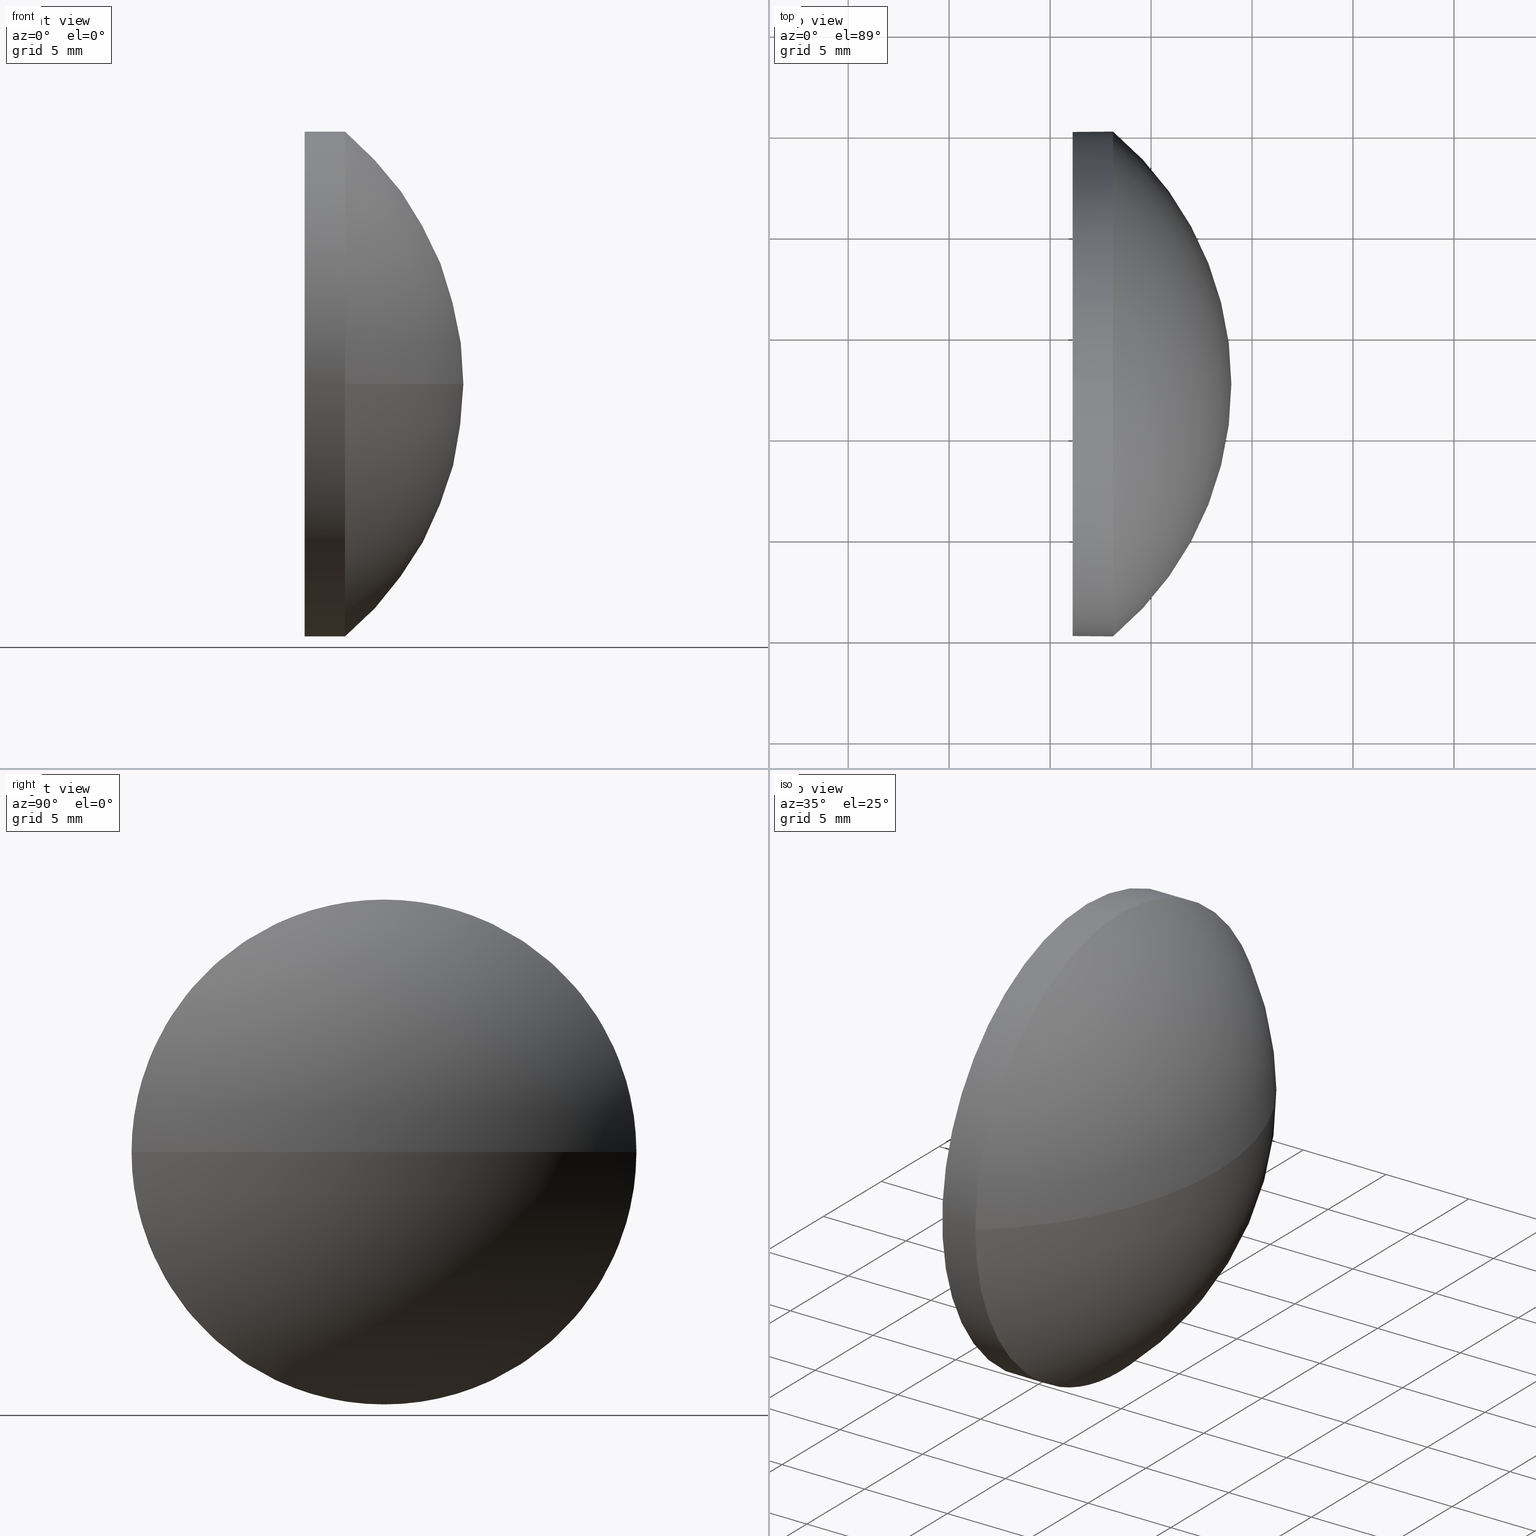
[diagram: canonical four-view strip — front | top / right | iso, engineering-drawing reading convention]
A machine part, canonical four-view strip (front | top / right | iso — engineering-drawing reading convention). The complete STEP part file that produces these views, byte-faithful:
ISO-10303-21;
HEADER;
FILE_DESCRIPTION (( 'STEP AP214' ),
    '1' );
FILE_NAME ('100038.STEP',
    '2019-04-25T08:39:30',
    ( '' ),
    ( '' ),
    'SwSTEP 2.0',
    'SolidWorks 2016',
    '' );
FILE_SCHEMA (( 'AUTOMOTIVE_DESIGN' ));
ENDSEC;

DATA;
#1 = AXIS2_PLACEMENT_3D ( 'NONE', #143, #88, #104 ) ;
#2 = CIRCLE ( 'NONE', #55, 16.26191126279863400 ) ;
#3 = DIRECTION ( 'NONE',  ( -1.000000000000000000, -0.0000000000000000000, -0.0000000000000000000 ) ) ;
#4 = CARTESIAN_POINT ( 'NONE',  ( 543.1151502343923300, 132.5985296569771200, -12.49999999999998400 ) ) ;
#5 = CIRCLE ( 'NONE', #97, 12.49999999999998400 ) ;
#6 = ORIENTED_EDGE ( 'NONE', *, *, #133, .F. ) ;
#7 = DIRECTION ( 'NONE',  ( -1.000000000000000000, -0.0000000000000000000, -0.0000000000000000000 ) ) ;
#8 = CARTESIAN_POINT ( 'NONE',  ( 543.1151502343923300, 132.5985296569771200, 12.49999999999998400 ) ) ;
#9 = ORIENTED_EDGE ( 'NONE', *, *, #86, .F. ) ;
#10 = EDGE_CURVE ( 'NONE', #53, #12, #121, .T. ) ;
#11 = SHAPE_DEFINITION_REPRESENTATION ( #148, #39 ) ;
#12 = VERTEX_POINT ( 'NONE', #152 ) ;
#13 = DIRECTION ( 'NONE',  ( 0.0000000000000000000, 0.0000000000000000000, 1.000000000000000000 ) ) ;
#14 = ORIENTED_EDGE ( 'NONE', *, *, #47, .F. ) ;
#15 = ORIENTED_EDGE ( 'NONE', *, *, #47, .T. ) ;
#16 = AXIS2_PLACEMENT_3D ( 'NONE', #23, #170, #40 ) ;
#17 = VERTEX_POINT ( 'NONE', #177 ) ;
#18 = FACE_OUTER_BOUND ( 'NONE', #58, .T. ) ;
#19 = CARTESIAN_POINT ( 'NONE',  ( 532.7132389715936800, 132.5985296569770900, 0.0000000000000000000 ) ) ;
#20 = FACE_OUTER_BOUND ( 'NONE', #117, .T. ) ;
#21 = CLOSED_SHELL ( 'NONE', ( #100, #102, #114, #80, #65 ) ) ;
#22 = DIRECTION ( 'NONE',  ( -1.000000000000000000, -0.0000000000000000000, -0.0000000000000000000 ) ) ;
#23 = CARTESIAN_POINT ( 'NONE',  ( 539.6031189925024600, 132.5985296569771200, 0.0000000000000000000 ) ) ;
#24 = AXIS2_PLACEMENT_3D ( 'NONE', #56, #106, #73 ) ;
#25 = FILL_AREA_STYLE_COLOUR ( '', #83 ) ;
#26 =( NAMED_UNIT ( * ) SI_UNIT ( $, .STERADIAN. ) SOLID_ANGLE_UNIT ( ) );
#27 = DIRECTION ( 'NONE',  ( 1.000000000000000000, 0.0000000000000000000, 0.0000000000000000000 ) ) ;
#28 = PRESENTATION_STYLE_ASSIGNMENT (( #89 ) ) ;
#29 = AXIS2_PLACEMENT_3D ( 'NONE', #19, #91, #54 ) ;
#30 = ORIENTED_EDGE ( 'NONE', *, *, #86, .T. ) ;
#31 = PLANE ( 'NONE',  #115 ) ;
#32 = EDGE_CURVE ( 'NONE', #53, #17, #98, .T. ) ;
#33 = CYLINDRICAL_SURFACE ( 'NONE', #16, 12.49999999999998400 ) ;
#34 = UNCERTAINTY_MEASURE_WITH_UNIT (LENGTH_MEASURE( 1.000000000000000100E-005 ), #95, 'distance_accuracy_value', 'NONE');
#35 = SURFACE_STYLE_FILL_AREA ( #181 ) ;
#36 = AXIS2_PLACEMENT_3D ( 'NONE', #163, #113, #130 ) ;
#37 = FACE_OUTER_BOUND ( 'NONE', #64, .T. ) ;
#38 = CARTESIAN_POINT ( 'NONE',  ( 541.1151502343923300, 132.5985296569771200, 12.49999999999998400 ) ) ;
#39 = ADVANCED_BREP_SHAPE_REPRESENTATION ( '100038', ( #96, #164 ), #150 ) ;
#40 = DIRECTION ( 'NONE',  ( 0.0000000000000000000, 0.0000000000000000000, 1.000000000000000000 ) ) ;
#41 = ORIENTED_EDGE ( 'NONE', *, *, #63, .F. ) ;
#42 = DIRECTION ( 'NONE',  ( 0.0000000000000000000, 1.224646799147353200E-016, -1.000000000000000000 ) ) ;
#43 = PRESENTATION_STYLE_ASSIGNMENT (( #171 ) ) ;
#44 = VERTEX_POINT ( 'NONE', #46 ) ;
#45 = DIRECTION ( 'NONE',  ( 0.0000000000000000000, 0.0000000000000000000, 1.000000000000000000 ) ) ;
#46 = CARTESIAN_POINT ( 'NONE',  ( 548.9751502343923400, 132.5985296569770900, 0.0000000000000000000 ) ) ;
#47 = EDGE_CURVE ( 'NONE', #153, #12, #85, .T. ) ;
#48 = CIRCLE ( 'NONE', #108, 16.26191126279863400 ) ;
#49 = ORIENTED_EDGE ( 'NONE', *, *, #176, .F. ) ;
#50 = DIRECTION ( 'NONE',  ( 1.000000000000000000, 0.0000000000000000000, 0.0000000000000000000 ) ) ;
#51 = DIRECTION ( 'NONE',  ( 0.0000000000000000000, 0.0000000000000000000, 1.000000000000000000 ) ) ;
#52 =( NAMED_UNIT ( * ) SI_UNIT ( $, .STERADIAN. ) SOLID_ANGLE_UNIT ( ) );
#53 = VERTEX_POINT ( 'NONE', #4 ) ;
#54 = DIRECTION ( 'NONE',  ( 0.0000000000000000000, 1.000000000000000000, 0.0000000000000000000 ) ) ;
#55 = AXIS2_PLACEMENT_3D ( 'NONE', #119, #120, #165 ) ;
#56 = CARTESIAN_POINT ( 'NONE',  ( 541.1151502343923300, 132.5985296569771200, 0.0000000000000000000 ) ) ;
#57 = CIRCLE ( 'NONE', #112, 12.49999999999998400 ) ;
#58 = EDGE_LOOP ( 'NONE', ( #9, #140, #128, #49 ) ) ;
#59 =( NAMED_UNIT ( * ) SI_UNIT ( $, .STERADIAN. ) SOLID_ANGLE_UNIT ( ) );
#60 = PRODUCT_DEFINITION_FORMATION_WITH_SPECIFIED_SOURCE ( '�κ�', '', #147, .NOT_KNOWN. ) ;
#61 = ORIENTED_EDGE ( 'NONE', *, *, #77, .F. ) ;
#62 = UNCERTAINTY_MEASURE_WITH_UNIT (LENGTH_MEASURE( 1.000000000000000100E-005 ), #169, 'distance_accuracy_value', 'NONE');
#63 = EDGE_CURVE ( 'NONE', #135, #123, #125, .T. ) ;
#64 = EDGE_LOOP ( 'NONE', ( #15, #151 ) ) ;
#65 = ADVANCED_FACE ( 'NONE', ( #37 ), #31, .F. ) ;
#66 = DIRECTION ( 'NONE',  ( 0.0000000000000000000, 0.0000000000000000000, 1.000000000000000000 ) ) ;
#67 = DIRECTION ( 'NONE',  ( 0.0000000000000000000, 0.0000000000000000000, -1.000000000000000000 ) ) ;
#68 = CARTESIAN_POINT ( 'NONE',  ( 539.6031189925024600, 132.5985296569771200, 0.0000000000000000000 ) ) ;
#69 = PRODUCT_RELATED_PRODUCT_CATEGORY ( 'part', '', ( #147 ) ) ;
#70 = VECTOR ( 'NONE', #132, 1000.000000000000000 ) ;
#71 = ORIENTED_EDGE ( 'NONE', *, *, #10, .T. ) ;
#72 =( NAMED_UNIT ( * ) PLANE_ANGLE_UNIT ( ) SI_UNIT ( $, .RADIAN. ) );
#73 = DIRECTION ( 'NONE',  ( 0.0000000000000000000, 0.0000000000000000000, 1.000000000000000000 ) ) ;
#74 = SURFACE_SIDE_STYLE ('',( #35 ) ) ;
#75 = COLOUR_RGB ( '',1.000000000000000000, 1.000000000000000000, 1.000000000000000000 ) ;
#76 = FILL_AREA_STYLE ('',( #134 ) ) ;
#77 = EDGE_CURVE ( 'NONE', #12, #153, #127, .T. ) ;
#78 = ORIENTED_EDGE ( 'NONE', *, *, #10, .F. ) ;
#79 =( GEOMETRIC_REPRESENTATION_CONTEXT ( 3 ) GLOBAL_UNCERTAINTY_ASSIGNED_CONTEXT ( ( #34 ) ) GLOBAL_UNIT_ASSIGNED_CONTEXT ( ( #95, #172, #59 ) ) REPRESENTATION_CONTEXT ( 'NONE', 'WORKASPACE' ) );
#80 = ADVANCED_FACE ( 'NONE', ( #155 ), #33, .T. ) ;
#81 = CARTESIAN_POINT ( 'NONE',  ( 541.1151502343923300, 132.5985296569771200, 0.0000000000000000000 ) ) ;
#82 =( GEOMETRIC_REPRESENTATION_CONTEXT ( 3 ) GLOBAL_UNCERTAINTY_ASSIGNED_CONTEXT ( ( #62 ) ) GLOBAL_UNIT_ASSIGNED_CONTEXT ( ( #169, #137, #52 ) ) REPRESENTATION_CONTEXT ( 'NONE', 'WORKASPACE' ) );
#83 = COLOUR_RGB ( '',1.000000000000000000, 1.000000000000000000, 1.000000000000000000 ) ;
#84 = CARTESIAN_POINT ( 'NONE',  ( 539.6031189925024600, 132.5985296569771200, -12.49999999999998400 ) ) ;
#85 = CIRCLE ( 'NONE', #174, 12.49999999999998400 ) ;
#86 = EDGE_CURVE ( 'NONE', #44, #123, #2, .T. ) ;
#87 = DIRECTION ( 'NONE',  ( 0.0000000000000000000, 1.000000000000000000, 1.224646799147354200E-016 ) ) ;
#88 = DIRECTION ( 'NONE',  ( -0.0000000000000000000, 0.0000000000000000000, -1.000000000000000000 ) ) ;
#89 = SURFACE_STYLE_USAGE ( .BOTH. , #74 ) ;
#90 = ORIENTED_EDGE ( 'NONE', *, *, #133, .T. ) ;
#91 = DIRECTION ( 'NONE',  ( -0.0000000000000000000, 0.0000000000000000000, -1.000000000000000000 ) ) ;
#92 = CARTESIAN_POINT ( 'NONE',  ( 539.6031189925024600, 132.5985296569771200, 12.49999999999998400 ) ) ;
#93 = APPLICATION_PROTOCOL_DEFINITION ( 'draft international standard', 'automotive_design', 1998, #146 ) ;
#94 = ORIENTED_EDGE ( 'NONE', *, *, #142, .F. ) ;
#95 =( LENGTH_UNIT ( ) NAMED_UNIT ( * ) SI_UNIT ( .MILLI., .METRE. ) );
#96 = MANIFOLD_SOLID_BREP ( '��ת1', #21 ) ;
#97 = AXIS2_PLACEMENT_3D ( 'NONE', #157, #22, #51 ) ;
#98 = CIRCLE ( 'NONE', #99, 12.49999999999998400 ) ;
#99 = AXIS2_PLACEMENT_3D ( 'NONE', #154, #180, #45 ) ;
#100 = ADVANCED_FACE ( 'NONE', ( #178 ), #109, .T. ) ;
#101 = VECTOR ( 'NONE', #103, 1000.000000000000000 ) ;
#102 = ADVANCED_FACE ( 'NONE', ( #18 ), #184, .T. ) ;
#103 = DIRECTION ( 'NONE',  ( -1.000000000000000000, -0.0000000000000000000, -0.0000000000000000000 ) ) ;
#104 = DIRECTION ( 'NONE',  ( 0.0000000000000000000, 1.000000000000000000, 0.0000000000000000000 ) ) ;
#105 = PRESENTATION_LAYER_ASSIGNMENT (  '', '', ( #179 ) ) ;
#106 = DIRECTION ( 'NONE',  ( -1.000000000000000000, -0.0000000000000000000, -0.0000000000000000000 ) ) ;
#107 = DIRECTION ( 'NONE',  ( 0.0000000000000000000, 0.0000000000000000000, 1.000000000000000000 ) ) ;
#108 = AXIS2_PLACEMENT_3D ( 'NONE', #156, #42, #87 ) ;
#109 = CYLINDRICAL_SURFACE ( 'NONE', #126, 12.49999999999998400 ) ;
#110 = PRODUCT_CONTEXT ( 'NONE', #185, 'mechanical' ) ;
#111 = ORIENTED_EDGE ( 'NONE', *, *, #63, .T. ) ;
#112 = AXIS2_PLACEMENT_3D ( 'NONE', #183, #122, #107 ) ;
#113 = DIRECTION ( 'NONE',  ( -1.000000000000000000, -0.0000000000000000000, -0.0000000000000000000 ) ) ;
#114 = ADVANCED_FACE ( 'NONE', ( #20 ), #173, .T. ) ;
#115 = AXIS2_PLACEMENT_3D ( 'NONE', #81, #50, #67 ) ;
#116 = LINE ( 'NONE', #92, #70 ) ;
#117 = EDGE_LOOP ( 'NONE', ( #162, #30, #41, #6 ) ) ;
#118 = DIRECTION ( 'NONE',  ( 0.0000000000000000000, 0.0000000000000000000, 1.000000000000000000 ) ) ;
#119 = CARTESIAN_POINT ( 'NONE',  ( 532.7132389715936800, 132.5985296569770900, 0.0000000000000000000 ) ) ;
#120 = DIRECTION ( 'NONE',  ( -0.0000000000000000000, 0.0000000000000000000, 1.000000000000000000 ) ) ;
#121 = LINE ( 'NONE', #84, #101 ) ;
#122 = DIRECTION ( 'NONE',  ( -1.000000000000000000, -0.0000000000000000000, -0.0000000000000000000 ) ) ;
#123 = VERTEX_POINT ( 'NONE', #158 ) ;
#124 = PRESENTATION_LAYER_ASSIGNMENT (  '', '', ( #175 ) ) ;
#125 = CIRCLE ( 'NONE', #36, 12.49999999999998400 ) ;
#126 = AXIS2_PLACEMENT_3D ( 'NONE', #68, #7, #118 ) ;
#127 = CIRCLE ( 'NONE', #24, 12.49999999999998400 ) ;
#128 = ORIENTED_EDGE ( 'NONE', *, *, #32, .F. ) ;
#129 = CARTESIAN_POINT ( 'NONE',  ( 541.1151502343923300, 132.5985296569771200, 0.0000000000000000000 ) ) ;
#130 = DIRECTION ( 'NONE',  ( 0.0000000000000000000, 0.0000000000000000000, 1.000000000000000000 ) ) ;
#131 = EDGE_LOOP ( 'NONE', ( #78, #186, #90, #182, #61 ) ) ;
#132 = DIRECTION ( 'NONE',  ( -1.000000000000000000, -0.0000000000000000000, -0.0000000000000000000 ) ) ;
#133 = EDGE_CURVE ( 'NONE', #17, #135, #5, .T. ) ;
#134 = FILL_AREA_STYLE_COLOUR ( '', #75 ) ;
#135 = VERTEX_POINT ( 'NONE', #8 ) ;
#136 = MECHANICAL_DESIGN_GEOMETRIC_PRESENTATION_REPRESENTATION (  '', ( #179 ), #82 ) ;
#137 =( NAMED_UNIT ( * ) PLANE_ANGLE_UNIT ( ) SI_UNIT ( $, .RADIAN. ) );
#138 = SURFACE_STYLE_FILL_AREA ( #76 ) ;
#139 = MECHANICAL_DESIGN_GEOMETRIC_PRESENTATION_REPRESENTATION (  '', ( #175 ), #79 ) ;
#140 = ORIENTED_EDGE ( 'NONE', *, *, #166, .T. ) ;
#141 = PRODUCT_DEFINITION ( 'δ֪', '', #60, #161 ) ;
#142 = EDGE_CURVE ( 'NONE', #135, #153, #116, .T. ) ;
#143 = CARTESIAN_POINT ( 'NONE',  ( 532.7132389715936800, 132.5985296569770900, 0.0000000000000000000 ) ) ;
#144 =( LENGTH_UNIT ( ) NAMED_UNIT ( * ) SI_UNIT ( .MILLI., .METRE. ) );
#145 = SURFACE_SIDE_STYLE ('',( #138 ) ) ;
#146 = APPLICATION_CONTEXT ( 'automotive_design' ) ;
#147 = PRODUCT ( '100038', '100038', '', ( #110 ) ) ;
#148 = PRODUCT_DEFINITION_SHAPE ( 'NONE', 'NONE',  #141 ) ;
#149 = UNCERTAINTY_MEASURE_WITH_UNIT (LENGTH_MEASURE( 1.000000000000000100E-005 ), #144, 'distance_accuracy_value', 'NONE');
#150 =( GEOMETRIC_REPRESENTATION_CONTEXT ( 3 ) GLOBAL_UNCERTAINTY_ASSIGNED_CONTEXT ( ( #149 ) ) GLOBAL_UNIT_ASSIGNED_CONTEXT ( ( #144, #72, #26 ) ) REPRESENTATION_CONTEXT ( 'NONE', 'WORKASPACE' ) );
#151 = ORIENTED_EDGE ( 'NONE', *, *, #77, .T. ) ;
#152 = CARTESIAN_POINT ( 'NONE',  ( 541.1151502343923300, 132.5985296569771200, -12.49999999999998400 ) ) ;
#153 = VERTEX_POINT ( 'NONE', #38 ) ;
#154 = CARTESIAN_POINT ( 'NONE',  ( 543.1151502343923300, 132.5985296569771200, 0.0000000000000000000 ) ) ;
#155 = FACE_OUTER_BOUND ( 'NONE', #131, .T. ) ;
#156 = CARTESIAN_POINT ( 'NONE',  ( 532.7132389715936800, 132.5985296569770900, 0.0000000000000000000 ) ) ;
#157 = CARTESIAN_POINT ( 'NONE',  ( 543.1151502343923300, 132.5985296569771200, 0.0000000000000000000 ) ) ;
#158 = CARTESIAN_POINT ( 'NONE',  ( 543.1151502343923300, 145.0985296569771200, 0.0000000000000000000 ) ) ;
#159 = APPLICATION_PROTOCOL_DEFINITION ( 'draft international standard', 'automotive_design', 1998, #185 ) ;
#160 = EDGE_LOOP ( 'NONE', ( #168, #71, #14, #94, #111 ) ) ;
#161 = PRODUCT_DEFINITION_CONTEXT ( 'detailed design', #146, 'design' ) ;
#162 = ORIENTED_EDGE ( 'NONE', *, *, #166, .F. ) ;
#163 = CARTESIAN_POINT ( 'NONE',  ( 543.1151502343923300, 132.5985296569771200, 0.0000000000000000000 ) ) ;
#164 = AXIS2_PLACEMENT_3D ( 'NONE', #167, #13, #27 ) ;
#165 = DIRECTION ( 'NONE',  ( 1.000000000000000000, 0.0000000000000000000, 0.0000000000000000000 ) ) ;
#166 = EDGE_CURVE ( 'NONE', #44, #17, #48, .T. ) ;
#167 = CARTESIAN_POINT ( 'NONE',  ( 0.0000000000000000000, 0.0000000000000000000, 0.0000000000000000000 ) ) ;
#168 = ORIENTED_EDGE ( 'NONE', *, *, #176, .T. ) ;
#169 =( LENGTH_UNIT ( ) NAMED_UNIT ( * ) SI_UNIT ( .MILLI., .METRE. ) );
#170 = DIRECTION ( 'NONE',  ( -1.000000000000000000, -0.0000000000000000000, -0.0000000000000000000 ) ) ;
#171 = SURFACE_STYLE_USAGE ( .BOTH. , #145 ) ;
#172 =( NAMED_UNIT ( * ) PLANE_ANGLE_UNIT ( ) SI_UNIT ( $, .RADIAN. ) );
#173 = SPHERICAL_SURFACE ( 'NONE', #29, 16.26191126279864800 ) ;
#174 = AXIS2_PLACEMENT_3D ( 'NONE', #129, #3, #66 ) ;
#175 = STYLED_ITEM ( 'NONE', ( #43 ), #39 ) ;
#176 = EDGE_CURVE ( 'NONE', #123, #53, #57, .T. ) ;
#177 = CARTESIAN_POINT ( 'NONE',  ( 543.1151502343923300, 120.0985296569771200, -1.530808498934188800E-015 ) ) ;
#178 = FACE_OUTER_BOUND ( 'NONE', #160, .T. ) ;
#179 = STYLED_ITEM ( 'NONE', ( #28 ), #96 ) ;
#180 = DIRECTION ( 'NONE',  ( -1.000000000000000000, -0.0000000000000000000, -0.0000000000000000000 ) ) ;
#181 = FILL_AREA_STYLE ('',( #25 ) ) ;
#182 = ORIENTED_EDGE ( 'NONE', *, *, #142, .T. ) ;
#183 = CARTESIAN_POINT ( 'NONE',  ( 543.1151502343923300, 132.5985296569771200, 0.0000000000000000000 ) ) ;
#184 = SPHERICAL_SURFACE ( 'NONE', #1, 16.26191126279864800 ) ;
#185 = APPLICATION_CONTEXT ( 'automotive_design' ) ;
#186 = ORIENTED_EDGE ( 'NONE', *, *, #32, .T. ) ;
ENDSEC;
END-ISO-10303-21;
